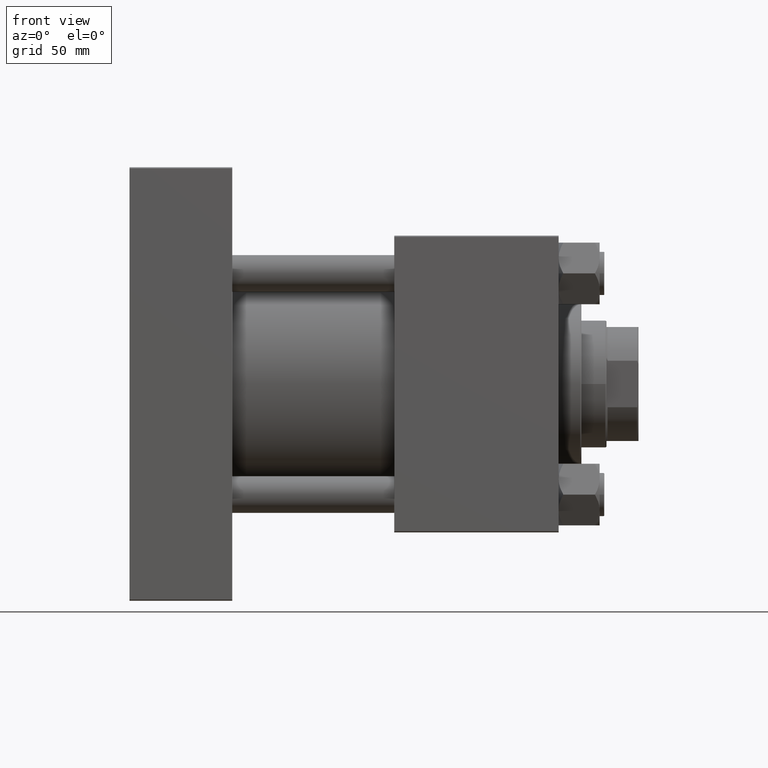
[diagram: clean part render]
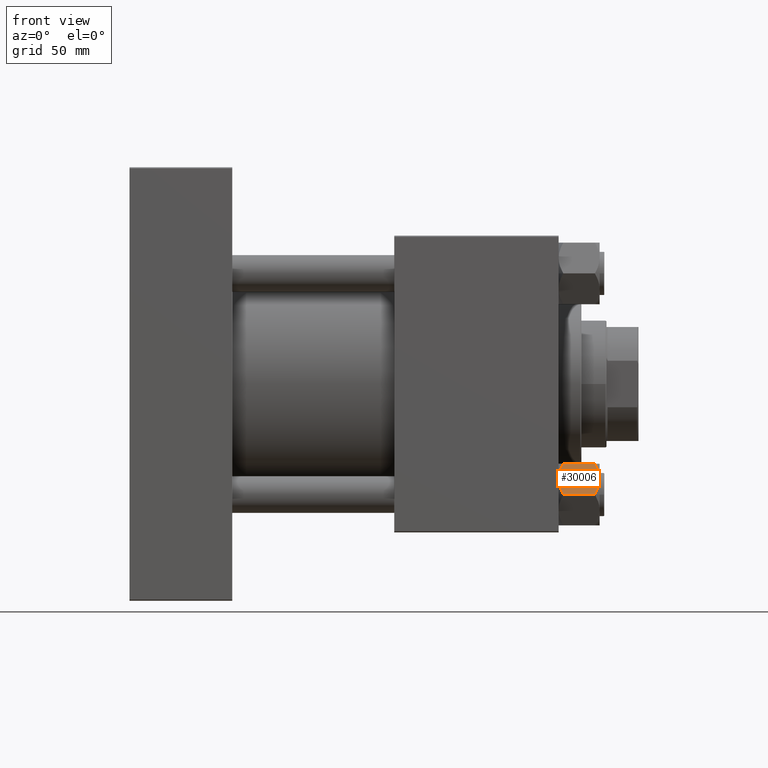
[diagram: same view with one face highlighted and labeled with its STEP entity id]
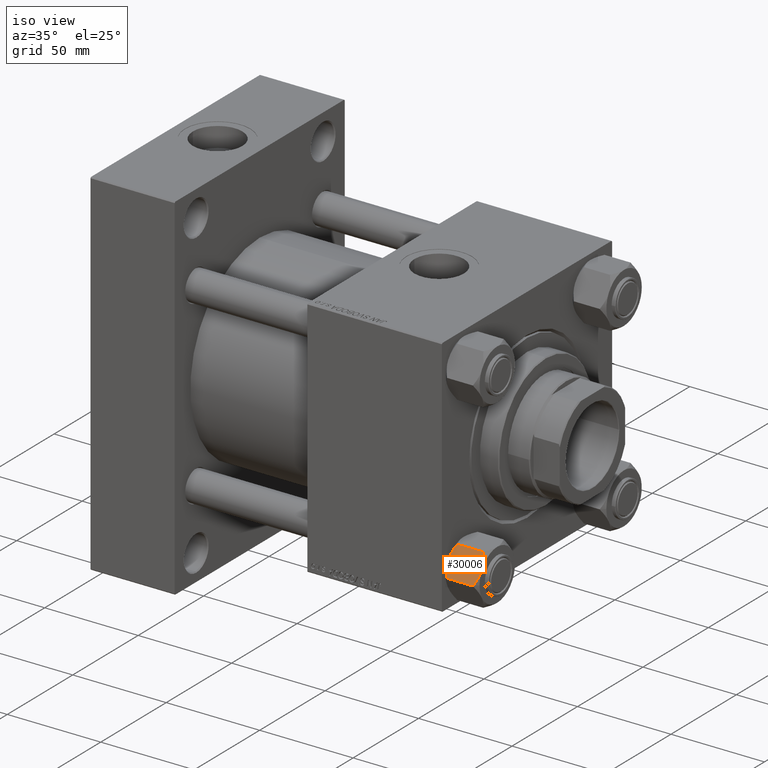
[diagram: same view with one face highlighted and labeled with its STEP entity id]
A machine part, front view. The second image highlights one B-rep face of the part: STEP entity #30006.
A second angle (iso view) of the same face is appended — the face is thin or edge-on in the first view.
In plain terms, the highlighted planar face has unit normal (-0, 0.866, -0.5).
Its self-contained STEP definition (entity closure, byte-faithful):
#869 = EDGE_CURVE ( 'NONE', #20275, #15117, #43006, .T. ) ;
#2733 = LINE ( 'NONE', #10649, #45932 ) ;
#3097 = EDGE_CURVE ( 'NONE', #40613, #15117, #17925, .T. ) ;
#3327 = CARTESIAN_POINT ( 'NONE',  ( 7.903528262322685904, -13.36532110482641400, -16.00000000000000000 ) ) ;
#3568 = CARTESIAN_POINT ( 'NONE',  ( 11.38181071908714692, -7.340759166634870603, -8.177256072793013896E-15 ) ) ;
#4504 = CARTESIAN_POINT ( 'NONE',  ( 11.71499999999999631, -6.763658403556465970, 0.000000000000000000 ) ) ;
#4640 = CARTESIAN_POINT ( 'NONE',  ( 15.62000000000000455, -1.379485931020374819E-15, -16.00000000000000000 ) ) ;
#5049 = CARTESIAN_POINT ( 'NONE',  ( 15.52647173767731736, -0.1619957022865265162, -16.00000000000000000 ) ) ;
#5186 = EDGE_CURVE ( 'NONE', #14185, #21940, #2733, .T. ) ;
#5350 = PLANE ( 'NONE',  #18585 ) ;
#5934 = ORIENTED_EDGE ( 'NONE', *, *, #11047, .F. ) ;
#6390 = CARTESIAN_POINT ( 'NONE',  ( 8.202637790192655487, -12.84724820552769309, -16.29368822085855584 ) ) ;
#6894 = CARTESIAN_POINT ( 'NONE',  ( 11.71499999999999631, -6.763658403556465970, 0.000000000000000000 ) ) ;
#7246 = EDGE_CURVE ( 'NONE', #19906, #39837, #40105, .T. ) ;
#7407 = CARTESIAN_POINT ( 'NONE',  ( 8.502393313253762130, -12.32805640973647598, -1.411989271640070598 ) ) ;
#7557 = CARTESIAN_POINT ( 'NONE',  ( 15.52647173767731736, -0.1619957022865265162, -2.000000000000000000 ) ) ;
#8185 = CARTESIAN_POINT ( 'NONE',  ( 15.52647173767731736, -0.1619957022865265162, -2.000000000000000000 ) ) ;
#8188 = ORIENTED_EDGE ( 'NONE', *, *, #25625, .F. ) ;
#8690 = CARTESIAN_POINT ( 'NONE',  ( 14.92394044919337759, -1.205610507090651762, -1.434462921875006680 ) ) ;
#8698 = CARTESIAN_POINT ( 'NONE',  ( 15.62000000000000455, -1.379485931020374819E-15, -18.00000000000000000 ) ) ;
#9007 = ORIENTED_EDGE ( 'NONE', *, *, #50468, .F. ) ;
#9217 = DIRECTION ( 'NONE',  ( -0.5000000000000002220, -0.8660254037844384856, 0.000000000000000000 ) ) ;
#9333 = ORIENTED_EDGE ( 'NONE', *, *, #35133, .F. ) ;
#10481 = CARTESIAN_POINT ( 'NONE',  ( 9.124083218049248600, -11.25125790807802595, -17.05261278537718184 ) ) ;
#10513 = ORIENTED_EDGE ( 'NONE', *, *, #7246, .F. ) ;
#10649 = CARTESIAN_POINT ( 'NONE',  ( 7.810000000000002274, -13.52731680711293372, -18.00000000000000000 ) ) ;
#10726 = CARTESIAN_POINT ( 'NONE',  ( 11.04378428799594936, -7.926238119586001218, -0.05089381635302238360 ) ) ;
#11047 = EDGE_CURVE ( 'NONE', #21940, #21674, #26025, .T. ) ;
#11158 = EDGE_CURVE ( 'NONE', #20088, #19906, #46504, .T. ) ;
#11440 = CARTESIAN_POINT ( 'NONE',  ( 12.04818928091285635, -6.186557640478069331, -17.99999999999998224 ) ) ;
#12011 = CARTESIAN_POINT ( 'NONE',  ( 13.99051971937273997, -2.822342635978021264, -0.7317196846281193157 ) ) ;
#14185 = VERTEX_POINT ( 'NONE', #31851 ) ;
#14578 = CARTESIAN_POINT ( 'NONE',  ( 11.05297796109638142, -7.910314210667883650, -17.99999999999999289 ) ) ;
#14819 = CARTESIAN_POINT ( 'NONE',  ( 10.06459418565412989, -9.622245127110605978, -0.3836066851120653598 ) ) ;
#15117 = VERTEX_POINT ( 'NONE', #28361 ) ;
#15139 = CARTESIAN_POINT ( 'NONE',  ( 7.810000000000002274, -13.52731680711293372, -1.999999999999998224 ) ) ;
#15499 = CARTESIAN_POINT ( 'NONE',  ( 15.62000000000000455, -1.379485931020374819E-15, -16.00000000000000000 ) ) ;
#15705 = VECTOR ( 'NONE', #19777, 1000.000000000000000 ) ;
#15813 = VECTOR ( 'NONE', #50088, 1000.000000000000114 ) ;
#16024 = CARTESIAN_POINT ( 'NONE',  ( 13.36540581434586983, -3.905071680002335288, -17.61639331488792948 ) ) ;
#16347 = CARTESIAN_POINT ( 'NONE',  ( 13.02784502466562522, -4.489744118371594261, -0.1971866459924624670 ) ) ;
#16978 = LINE ( 'NONE', #40701, #39533 ) ;
#17925 = LINE ( 'NONE', #29913, #15813 ) ;
#18585 = AXIS2_PLACEMENT_3D ( 'NONE', #8698, #35506, #48021 ) ;
#18855 = ORIENTED_EDGE ( 'NONE', *, *, #36109, .F. ) ;
#18874 = DIRECTION ( 'NONE',  ( 0.5000000000000002220, 0.8660254037844384856, -0.000000000000000000 ) ) ;
#18924 = CARTESIAN_POINT ( 'NONE',  ( 10.38662926516872353, -9.064464007571848114, -0.2430846701013040789 ) ) ;
#19777 = DIRECTION ( 'NONE',  ( -0.000000000000000000, -0.000000000000000000, 1.000000000000000000 ) ) ;
#19906 = VERTEX_POINT ( 'NONE', #37430 ) ;
#19941 = CARTESIAN_POINT ( 'NONE',  ( 11.71499999999999631, -6.763658403556465970, 0.000000000000000000 ) ) ;
#20088 = VERTEX_POINT ( 'NONE', #5049 ) ;
#20125 = CARTESIAN_POINT ( 'NONE',  ( 12.38621571200405214, -5.601078687526937827, -17.94910618364697186 ) ) ;
#20199 = CARTESIAN_POINT ( 'NONE',  ( 12.37702203890362895, -5.617002596445059837, -8.339886398665841138E-15 ) ) ;
#20275 = VERTEX_POINT ( 'NONE', #15499 ) ;
#21674 = VERTEX_POINT ( 'NONE', #39417 ) ;
#21940 = VERTEX_POINT ( 'NONE', #15139 ) ;
#22998 = CARTESIAN_POINT ( 'NONE',  ( 9.114548888011796635, -11.26777185211903110, -0.9142282604026980009 ) ) ;
#23201 = CARTESIAN_POINT ( 'NONE',  ( 11.71499999999999453, -6.763658403556466858, -18.00000000000000000 ) ) ;
#23360 = CARTESIAN_POINT ( 'NONE',  ( 15.62000000000000455, -1.379485931020374819E-15, -18.00000000000000000 ) ) ;
#24068 = LINE ( 'NONE', #4640, #33433 ) ;
#24870 = VERTEX_POINT ( 'NONE', #4504 ) ;
#25625 = EDGE_CURVE ( 'NONE', #24870, #40613, #30597, .T. ) ;
#25822 = CARTESIAN_POINT ( 'NONE',  ( 11.71499999999999453, -6.763658403556466858, -18.00000000000000000 ) ) ;
#25993 = DIRECTION ( 'NONE',  ( -0.000000000000000000, -0.000000000000000000, 1.000000000000000000 ) ) ;
#26025 = LINE ( 'NONE', #41326, #45301 ) ;
#27598 = CARTESIAN_POINT ( 'NONE',  ( 14.30591678195075644, -2.276058899034912653, -0.9473872146228189406 ) ) ;
#28361 = CARTESIAN_POINT ( 'NONE',  ( 15.62000000000000455, -1.379485931020374819E-15, -1.999999999999998224 ) ) ;
#29913 = CARTESIAN_POINT ( 'NONE',  ( 15.62000000000000455, -1.379485931020374819E-15, -1.999999999999998224 ) ) ;
#30006 = ADVANCED_FACE ( 'NONE', ( #47020 ), #5350, .F. ) ;
#30144 = CARTESIAN_POINT ( 'NONE',  ( 10.40215497533437627, -9.037572688741342120, -17.80281335400753662 ) ) ;
#30597 = B_SPLINE_CURVE_WITH_KNOTS ( 'NONE', 3,
 ( #19941, #20199, #16347, #12011, #27598, #8690, #46758, #8185 ),
 .UNSPECIFIED., .F., .F.,
 ( 4, 2, 2, 4 ),
 ( 0.007890825462474404875, 0.01181022244528550681, 0.01376992093669105778, 0.01572961942809661048 ),
 .UNSPECIFIED. ) ;
#31851 = CARTESIAN_POINT ( 'NONE',  ( 7.810000000000002274, -13.52731680711293372, -16.00000000000000000 ) ) ;
#33433 = VECTOR ( 'NONE', #9217, 1000.000000000000114 ) ;
#33875 = CARTESIAN_POINT ( 'NONE',  ( 7.903528262322685904, -13.36532110482641400, -16.00000000000000000 ) ) ;
#34435 = EDGE_LOOP ( 'NONE', ( #18855, #43958, #47181, #8188, #9333, #5934, #38241, #9007, #10513, #44542 ) ) ;
#35133 = EDGE_CURVE ( 'NONE', #21674, #24870, #40965, .T. ) ;
#35506 = DIRECTION ( 'NONE',  ( -0.8660254037844385966, 0.5000000000000003331, 0.000000000000000000 ) ) ;
#36109 = EDGE_CURVE ( 'NONE', #20275, #20088, #24068, .T. ) ;
#37430 = CARTESIAN_POINT ( 'NONE',  ( 11.71499999999999453, -6.763658403556466858, -18.00000000000000000 ) ) ;
#37551 = CARTESIAN_POINT ( 'NONE',  ( 9.439480280627268627, -10.70497417113491245, -17.26828031537187513 ) ) ;
#38241 = ORIENTED_EDGE ( 'NONE', *, *, #5186, .F. ) ;
#38312 = CARTESIAN_POINT ( 'NONE',  ( 8.506059550806629233, -12.32170630002228684, -16.56553707812499709 ) ) ;
#39417 = CARTESIAN_POINT ( 'NONE',  ( 7.903528262322685904, -13.36532110482641400, -2.000000000000000000 ) ) ;
#39497 = CARTESIAN_POINT ( 'NONE',  ( 14.31545111198821019, -2.259544954993912391, -17.08577173959730544 ) ) ;
#39533 = VECTOR ( 'NONE', #48136, 1000.000000000000114 ) ;
#39837 = VERTEX_POINT ( 'NONE', #33875 ) ;
#40105 = B_SPLINE_CURVE_WITH_KNOTS ( 'NONE', 3,
 ( #25822, #14578, #30144, #37551, #10481, #38312, #6390, #3327 ),
 .UNSPECIFIED., .F., .F.,
 ( 4, 2, 2, 4 ),
 ( 0.007890825462474406610, 0.01181022244528550855, 0.01376992093669106125, 0.01572961942809661395 ),
 .UNSPECIFIED. ) ;
#40613 = VERTEX_POINT ( 'NONE', #7557 ) ;
#40701 = CARTESIAN_POINT ( 'NONE',  ( 15.62000000000000455, -1.379485931020374819E-15, -16.00000000000000000 ) ) ;
#40965 = B_SPLINE_CURVE_WITH_KNOTS ( 'NONE', 3,
 ( #46486, #7407, #22998, #14819, #18924, #10726, #3568, #6894 ),
 .UNSPECIFIED., .F., .F.,
 ( 4, 2, 2, 4 ),
 ( 4.472842641884425184E-07, 0.003945636373369292710, 0.005918230917921847925, 0.007890825462474404875 ),
 .UNSPECIFIED. ) ;
#41326 = CARTESIAN_POINT ( 'NONE',  ( 15.62000000000000455, -1.379485931020374819E-15, -1.999999999999998224 ) ) ;
#42852 = CARTESIAN_POINT ( 'NONE',  ( 15.52647173767731736, -0.1619957022865265162, -16.00000000000000000 ) ) ;
#43006 = LINE ( 'NONE', #23360, #15705 ) ;
#43958 = ORIENTED_EDGE ( 'NONE', *, *, #869, .T. ) ;
#44542 = ORIENTED_EDGE ( 'NONE', *, *, #11158, .F. ) ;
#45301 = VECTOR ( 'NONE', #18874, 1000.000000000000114 ) ;
#45932 = VECTOR ( 'NONE', #25993, 1000.000000000000000 ) ;
#46439 = CARTESIAN_POINT ( 'NONE',  ( 13.04337073483127796, -4.462852799541095372, -17.75691532989869614 ) ) ;
#46486 = CARTESIAN_POINT ( 'NONE',  ( 7.903528262322685904, -13.36532110482641400, -2.000000000000000000 ) ) ;
#46504 = B_SPLINE_CURVE_WITH_KNOTS ( 'NONE', 3,
 ( #42852, #50275, #39497, #16024, #46439, #20125, #11440, #23201 ),
 .UNSPECIFIED., .F., .F.,
 ( 4, 2, 2, 4 ),
 ( 4.472842641925296111E-07, 0.003945636373369297914, 0.005918230917921852262, 0.007890825462474406610 ),
 .UNSPECIFIED. ) ;
#46758 = CARTESIAN_POINT ( 'NONE',  ( 15.22736220980735489, -0.6800686015852459576, -1.706311779141445273 ) ) ;
#47020 = FACE_OUTER_BOUND ( 'NONE', #34435, .T. ) ;
#47181 = ORIENTED_EDGE ( 'NONE', *, *, #3097, .F. ) ;
#48021 = DIRECTION ( 'NONE',  ( -0.5000000000000002220, -0.8660254037844384856, 0.000000000000000000 ) ) ;
#48136 = DIRECTION ( 'NONE',  ( -0.5000000000000002220, -0.8660254037844384856, 0.000000000000000000 ) ) ;
#50088 = DIRECTION ( 'NONE',  ( 0.5000000000000002220, 0.8660254037844384856, -0.000000000000000000 ) ) ;
#50275 = CARTESIAN_POINT ( 'NONE',  ( 14.92760668674624291, -1.199260397376471499, -16.58801072835992940 ) ) ;
#50468 = EDGE_CURVE ( 'NONE', #39837, #14185, #16978, .T. ) ;